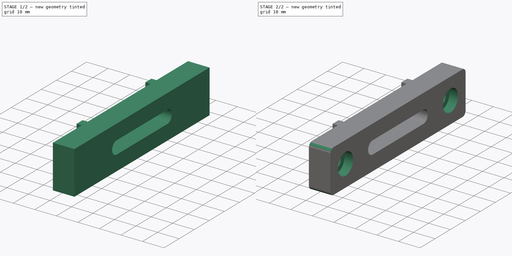
[diagram: build sequence overview — one tinted view per stage of 2, left to right]
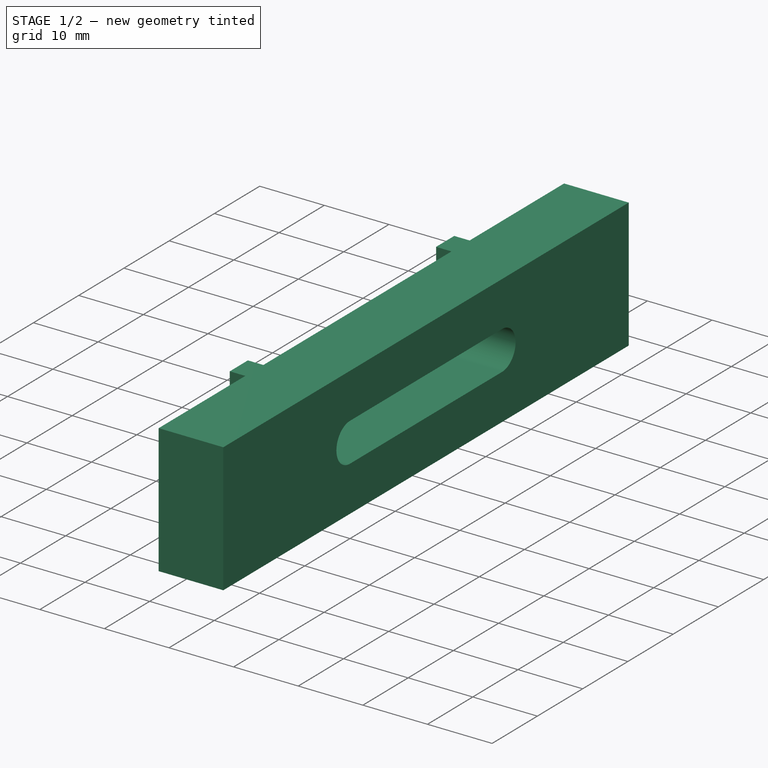
[diagram: stage 1 of 2 — iso view after this stage's code; geometry added in this stage tinted green]
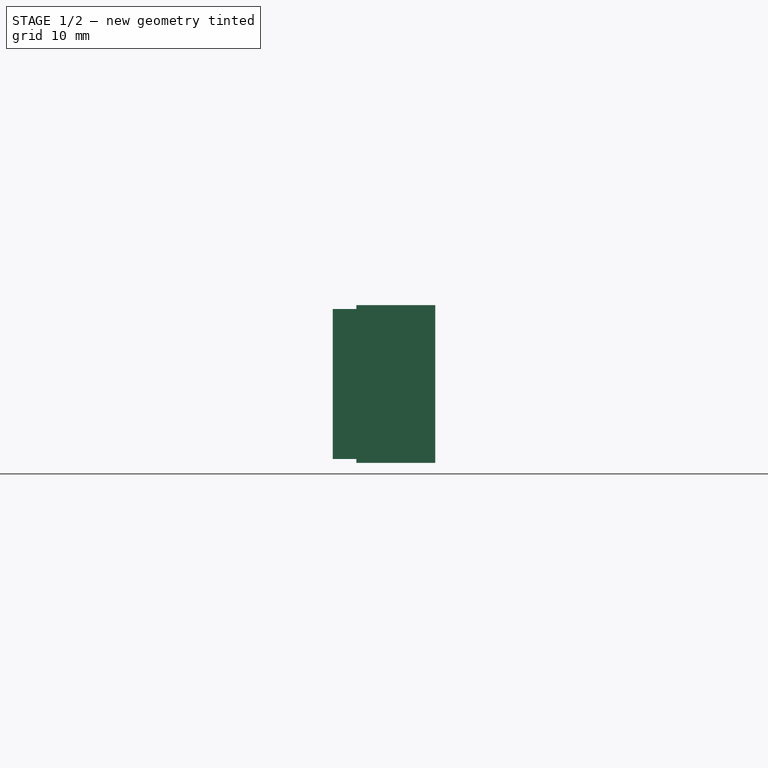
[diagram: stage 1 of 2 — front view after this stage's code; geometry added in this stage tinted green]
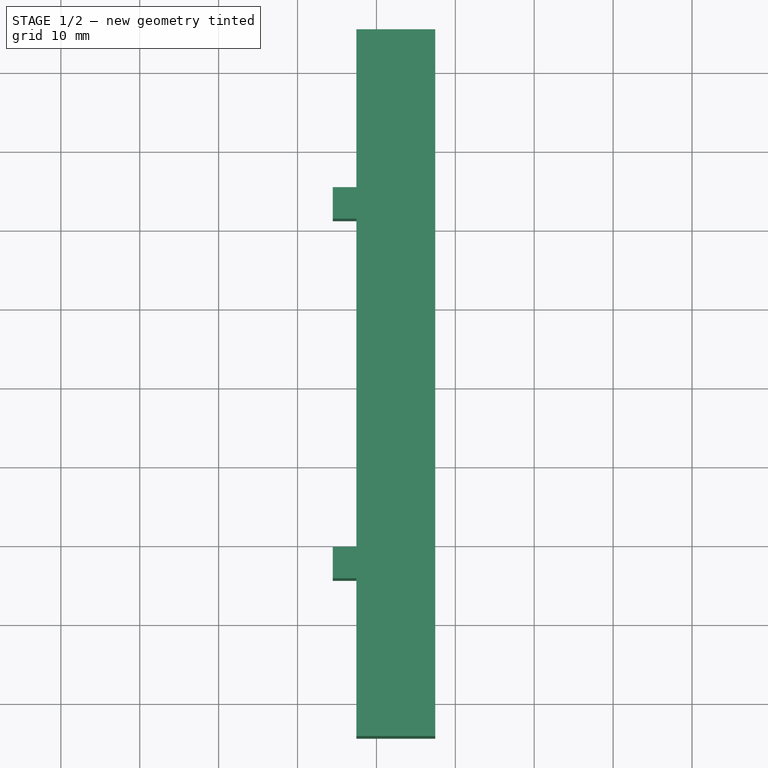
[diagram: stage 1 of 2 — top view after this stage's code; geometry added in this stage tinted green]
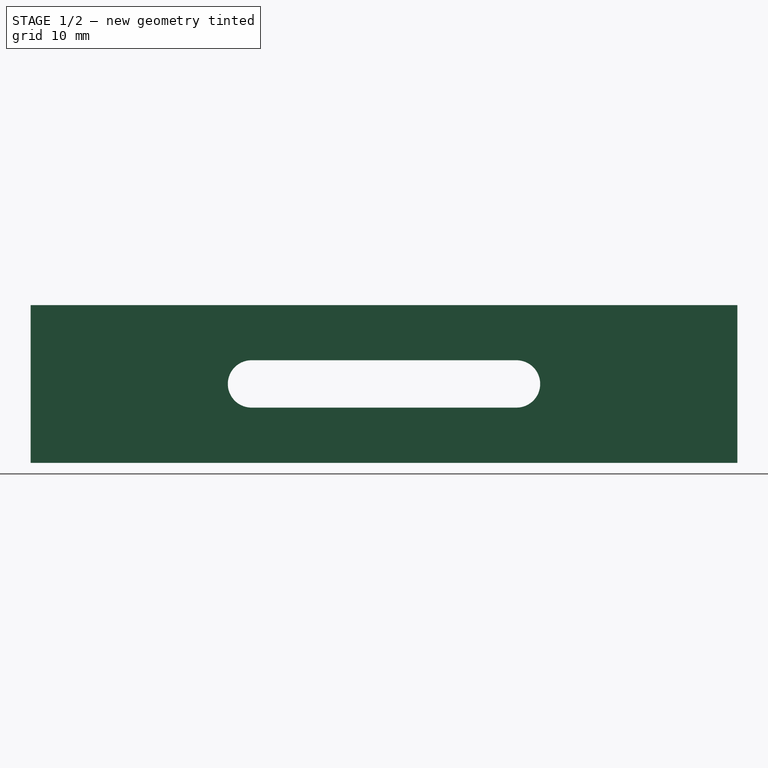
[diagram: stage 1 of 2 — right view after this stage's code; geometry added in this stage tinted green]
FCSTD DOCUMENT  (FreeCAD 0.20R29177 (Git))
Label: AM_004b_toolfix_GA3Dtech
License: All rights reserved
LicenseURL: http://en.wikipedia.org/wiki/All_rights_reserved
objects: Sketcher::SketchObject×3, PartDesign::Pad×2, PartDesign::SubShapeBinder×1, PartDesign::Hole×1, PartDesign::Fillet×1, PartDesign::Body×1
note: 13 computed .brp shape members not serialized (recipe doc carries the construction recipe); baked Part::Feature solids carry a one-line shape summary decoded from their .brp

FEATURE [PartDesign::SubShapeBinder] Binder
  BindCopyOnChange = 0
  BindMode = 2
  ClaimChildren = false
  Context = -> Body [Binder.]
  Fuse = false
  MakeFace = true
  OffsetFill = false
  OffsetIntersection = false
  OffsetJoinType = 0
  OffsetOpenResult = false
  PartialLoad = false
  Refine = true
  Relative = true
  _Version = 2
FEATURE [Sketcher::SketchObject] Sketch
  ExternalGeometry = -> [Binder]
  FullyConstrained = true
  MapMode = 5
  Placement = pos=(237.459,0,0) rot=(0.57735,0.57735,0.57735;2.0944rad)
  Support = -> [Binder]
  sketch-geometry (8):
    g0: LineSegment StartX=45.225 StartY=199.849 StartZ=0 EndX=-44.3729 EndY=199.849 EndZ=0
    g1: LineSegment StartX=-44.3729 StartY=199.849 StartZ=0 EndX=-44.3729 EndY=179.849 EndZ=0
    g2: LineSegment StartX=-44.3729 StartY=179.849 StartZ=0 EndX=45.225 EndY=179.849 EndZ=0
    g3: LineSegment StartX=45.225 StartY=179.849 StartZ=0 EndX=45.225 EndY=199.849 EndZ=0
    g4: ArcOfCircle CenterX=-16.3729 CenterY=189.858 CenterZ=0 NormalX=0 NormalY=0 NormalZ=1 AngleXU=0 Radius=3 StartAngle=1.5708 EndAngle=4.71239
    g5: ArcOfCircle CenterX=17.225 CenterY=189.858 CenterZ=0 NormalX=0 NormalY=0 NormalZ=1 AngleXU=0 Radius=3 StartAngle=4.71239 EndAngle=7.85398
    g6: LineSegment StartX=-16.3729 StartY=186.858 StartZ=0 EndX=17.225 EndY=186.858 EndZ=0
    g7: LineSegment StartX=-16.3729 StartY=192.858 StartZ=0 EndX=17.225 EndY=192.858 EndZ=0
  constraints (22):
    c: Coincident(g0,g1)
    c: Coincident(g1,g2)
    c: Coincident(g2,g3)
    c: Coincident(g3,g0)
    c: Horizontal(g0)
    c: Horizontal(g2)
    c: Vertical(g1)
    c: Vertical(g3)
    c: Vertical(g1,g-3)
    c: Horizontal(g-6,g0)
    c: Horizontal(g2,g-4)
    c: Vertical(g-5,g0)
    c: Tangent(g4,g7) = 1.5708
    c: Tangent(g4,g6) = -1.5708
    c: Tangent(g6,g5) = -1.5708
    c: Tangent(g7,g5) = 1.5708
    c: Horizontal(g6)
    c: Equal(g4,g5)
    c: Horizontal(g4,g-7)
    c: Radius(g5) = 3
    c: DistanceX(g-7,g4) = 18
    c: DistanceX(g5,g-8) = 18
FEATURE [PartDesign::Pad] Pad
  Direction = (1,1,1)
  Length = 10
  Length2 = 100
  Profile = -> Sketch
  Type = 0
FEATURE [Sketcher::SketchObject] Sketch001
  ExternalGeometry = -> [Binder]
  FullyConstrained = true
  MapMode = 5
  Placement = pos=(237.459,0,0) rot=(0.57735,-0.57735,-0.57735;2.0944rad)
  Support = -> [Pad]
  sketch-geometry (8):
    g0: LineSegment StartX=-25.225 StartY=199.349 StartZ=0 EndX=-21.225 EndY=199.349 EndZ=0
    g1: LineSegment StartX=-21.225 StartY=199.349 StartZ=0 EndX=-21.225 EndY=180.349 EndZ=0
    g2: LineSegment StartX=-21.225 StartY=180.349 StartZ=0 EndX=-25.225 EndY=180.349 EndZ=0
    g3: LineSegment StartX=-25.225 StartY=180.349 StartZ=0 EndX=-25.225 EndY=199.349 EndZ=0
    g4: LineSegment StartX=24.3729 StartY=199.358 StartZ=0 EndX=20.3729 EndY=199.358 EndZ=0
    g5: LineSegment StartX=20.3729 StartY=199.358 StartZ=0 EndX=20.3729 EndY=180.358 EndZ=0
    g6: LineSegment StartX=20.3729 StartY=180.358 StartZ=0 EndX=24.3729 EndY=180.358 EndZ=0
    g7: LineSegment StartX=24.3729 StartY=180.358 StartZ=0 EndX=24.3729 EndY=199.358 EndZ=0
  constraints (20):
    c: Coincident(g0,g1)
    c: Coincident(g1,g2)
    c: Coincident(g2,g3)
    c: Coincident(g3,g0)
    c: Horizontal(g0)
    c: Horizontal(g2)
    c: Vertical(g1)
    c: Coincident(g0,g-3)
    c: Coincident(g-5,g2)
    c: DistanceX(g0,g0) = 4
    c: Coincident(g4,g5)
    c: Coincident(g5,g6)
    c: Coincident(g6,g7)
    c: Coincident(g7,g4)
    c: Horizontal(g4)
    c: Horizontal(g6)
    c: Vertical(g5)
    c: Coincident(g4,g-4)
    c: Coincident(g6,g-6)
    c: DistanceX(g6,g6) = 4
FEATURE [PartDesign::Pad] Pad001
  BaseFeature = -> Pad
  Direction = (1,1,1)
  Length = 3
  Length2 = 100
  Profile = -> Sketch001
  Type = 0
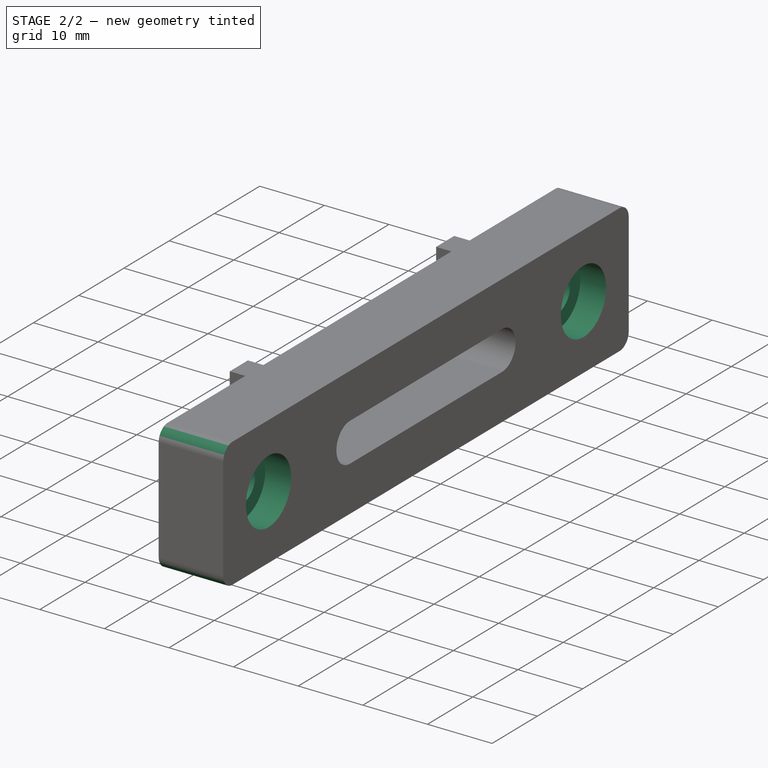
[diagram: stage 2 of 2 — iso view after this stage's code; geometry added in this stage tinted green]
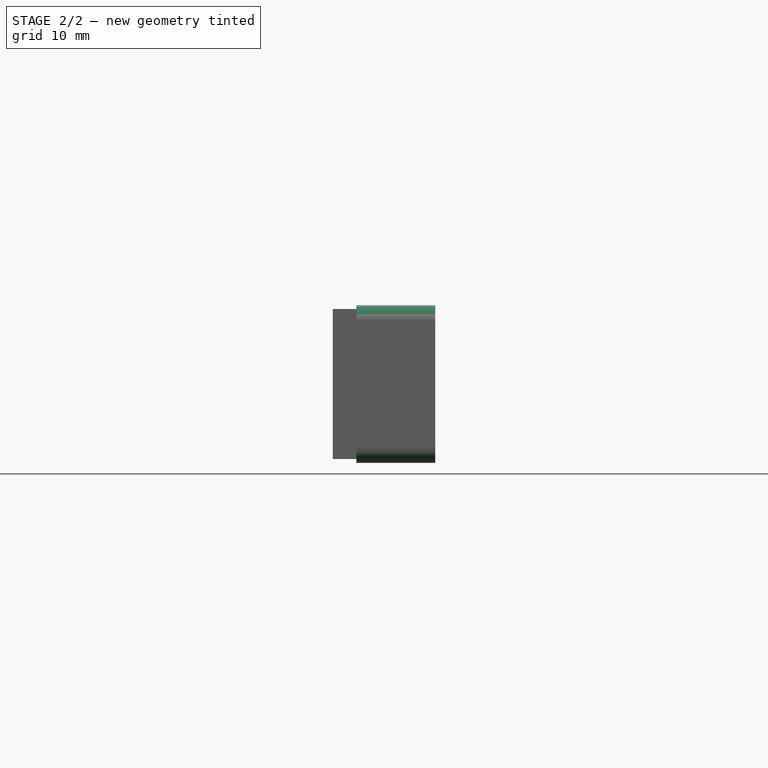
[diagram: stage 2 of 2 — front view after this stage's code; geometry added in this stage tinted green]
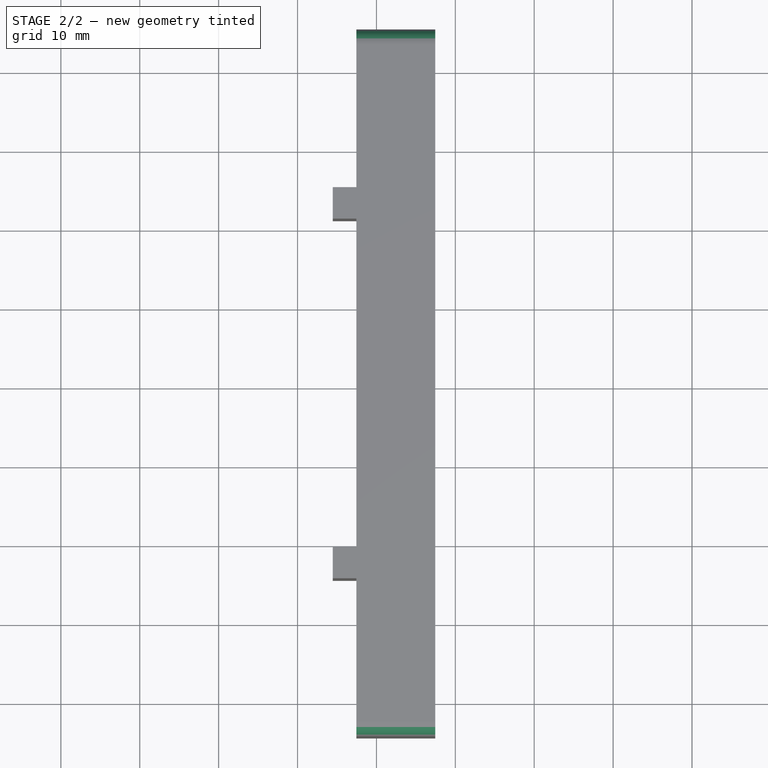
[diagram: stage 2 of 2 — top view after this stage's code; geometry added in this stage tinted green]
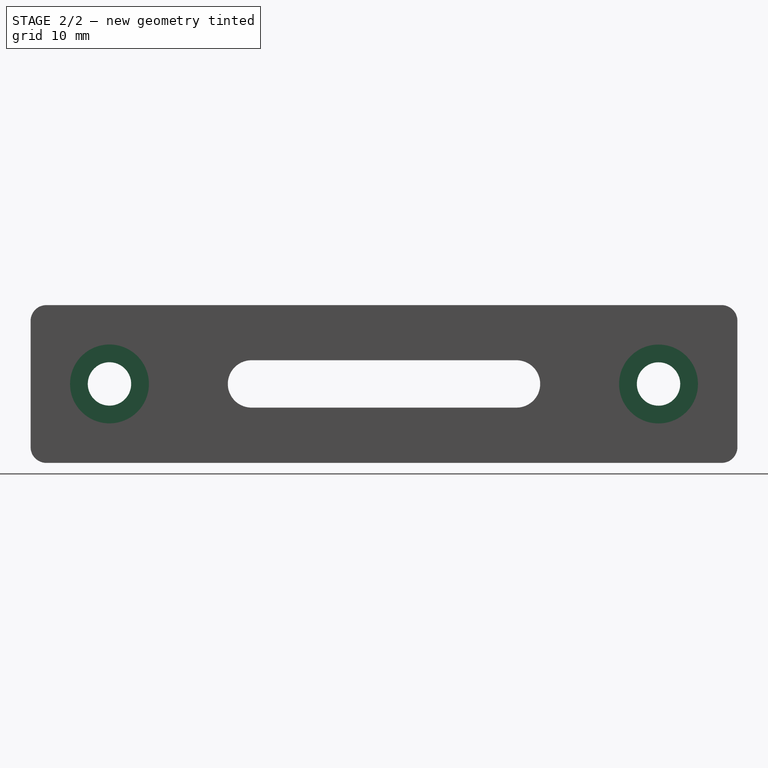
[diagram: stage 2 of 2 — right view after this stage's code; geometry added in this stage tinted green]
FEATURE [Sketcher::SketchObject] Sketch002
  ExternalGeometry = -> [Binder]
  FullyConstrained = false
  MapMode = 5
  Placement = pos=(247.459,0,0) rot=(0.57735,0.57735,0.57735;2.0944rad)
  Support = -> [Pad001]
  sketch-geometry (2):
    g0: Circle CenterX=-34.3729 CenterY=189.858 CenterZ=0 NormalX=0 NormalY=0 NormalZ=1 AngleXU=0 Radius=3.81493
    g1: Circle CenterX=35.225 CenterY=189.849 CenterZ=0 NormalX=0 NormalY=0 NormalZ=1 AngleXU=0 Radius=3.1654
  constraints (2):
    c: Coincident(g0,g-3)
    c: Coincident(g1,g-4)
FEATURE [PartDesign::Hole] Hole
  BaseFeature = -> Pad001
  CustomThreadClearance = 0
  Depth = 25
  DepthType = 0
  Diameter = 5.5
  DrillForDepth = false
  DrillPoint = 1
  DrillPointAngle = 118
  HoleCutCountersinkAngle = 90
  HoleCutCustomValues = false
  HoleCutDepth = 4
  HoleCutDiameter = 10
  HoleCutType = 6
  ModelThread = false
  Profile = -> Sketch002
  Tapered = false
  TaperedAngle = 90
  ThreadClass = 0
  ThreadDepth = 23.5
  ThreadDepthType = 0
  ThreadDirection = 0
  ThreadFit = 0
  ThreadSize = 13
  ThreadType = 1
  Threaded = false
  UseCustomThreadClearance = false
FEATURE [PartDesign::Fillet] Fillet
  Base = -> Hole [Edge1,Edge5,Edge2,Edge8]
  BaseFeature = -> Hole
  Radius = 2
  SupportTransform = false
  UseAllEdges = false
FEATURE [PartDesign::Body] Body
  Group = -> [Binder,Sketch,Pad,Sketch001,Pad001,Sketch002,Hole,Fillet]
  Origin = -> Origin
  Placement = pos=(-253.7,0,-183.9) rot=(0,0,1;0rad)
  Tip = -> Fillet
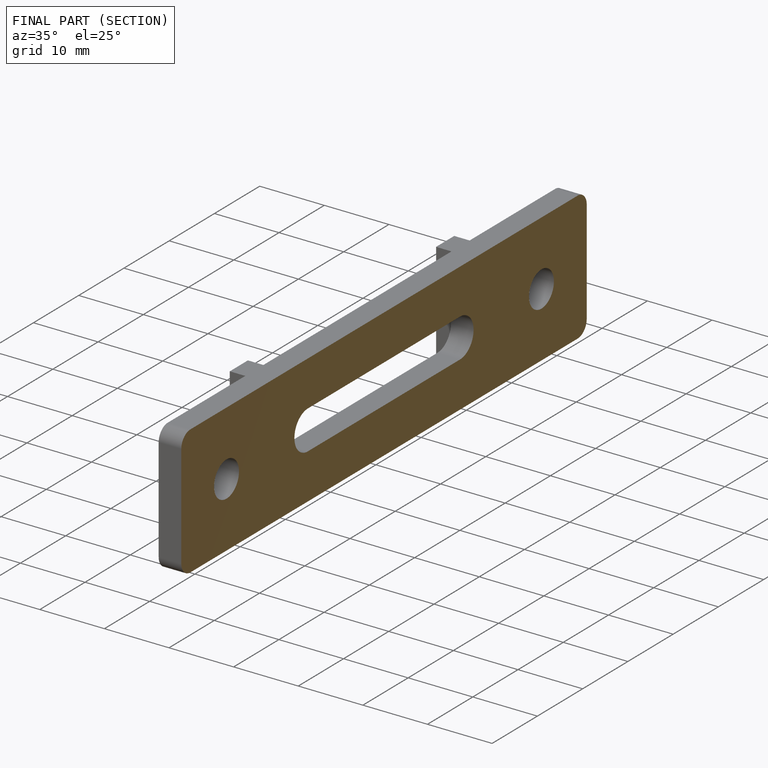
[diagram: finished part — half-section view (interior)]
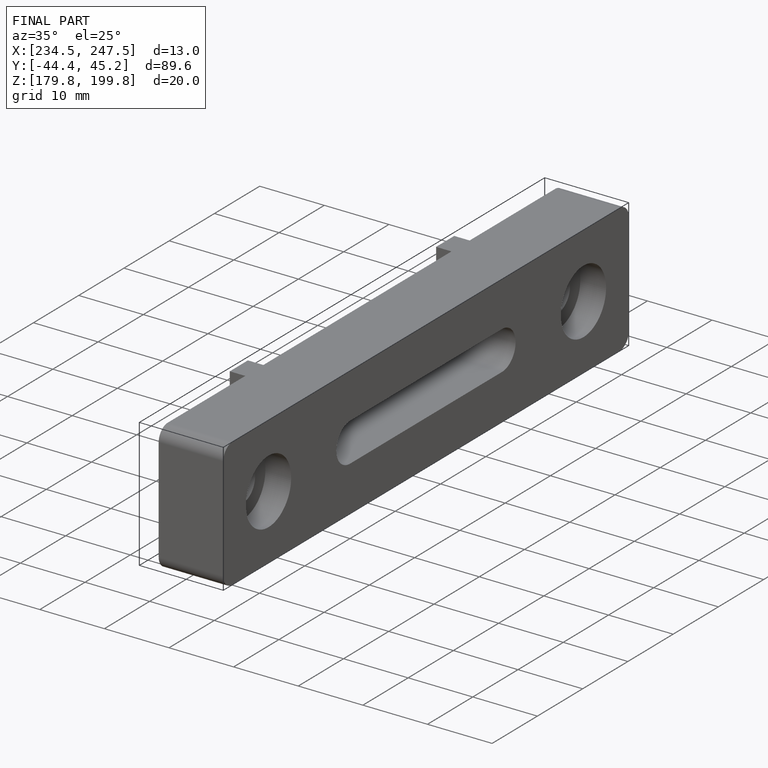
[diagram: finished part — iso view with bounding-box wireframe]
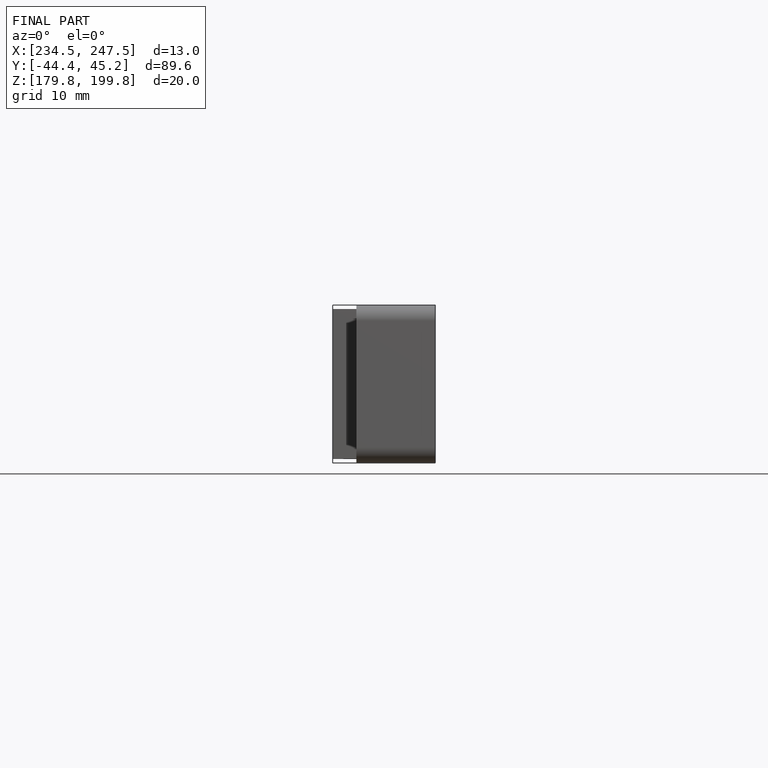
[diagram: finished part — front view with bounding-box wireframe]
